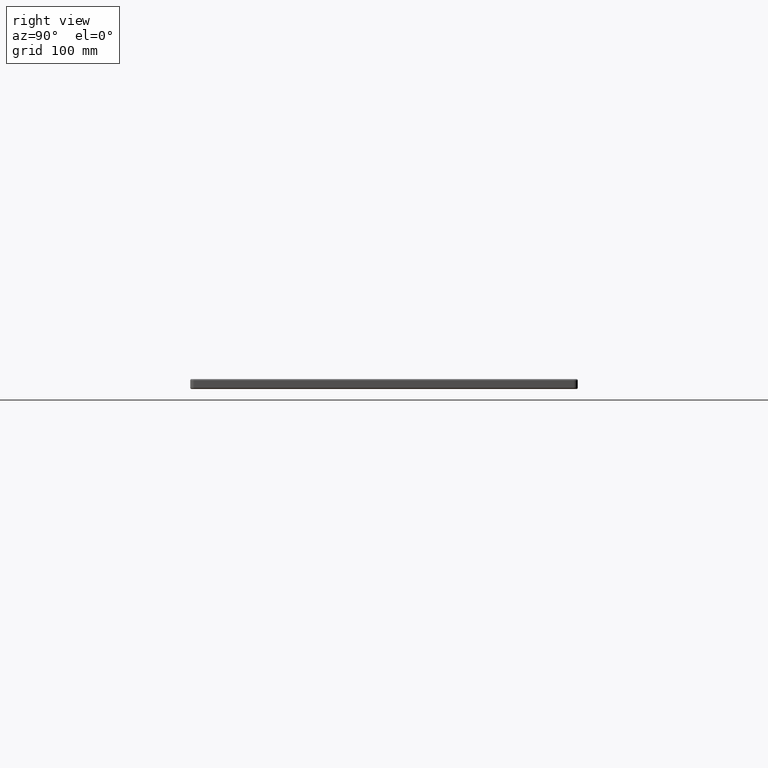
[diagram: clean part render]
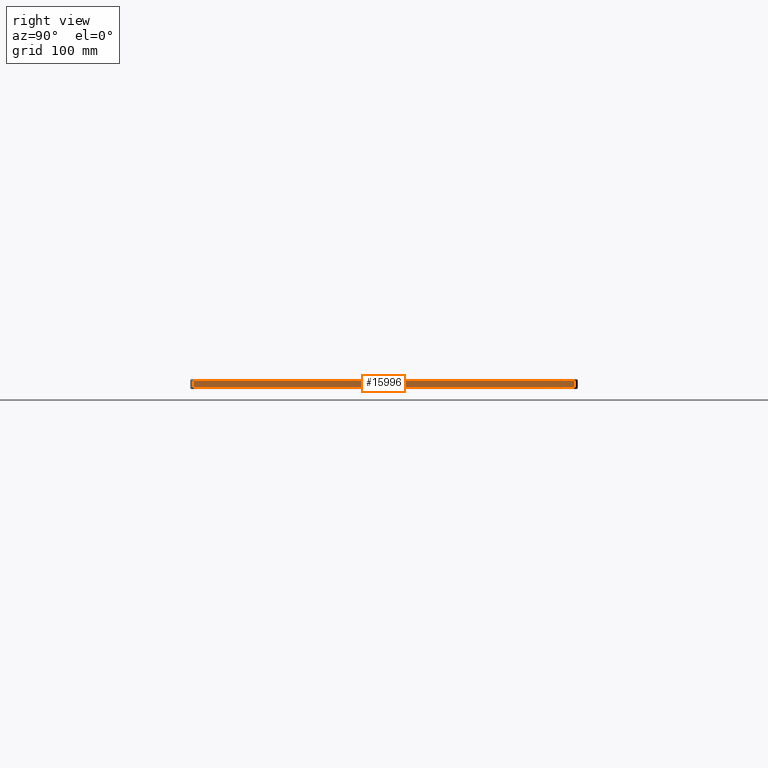
[diagram: same view with one face highlighted and labeled with its STEP entity id]
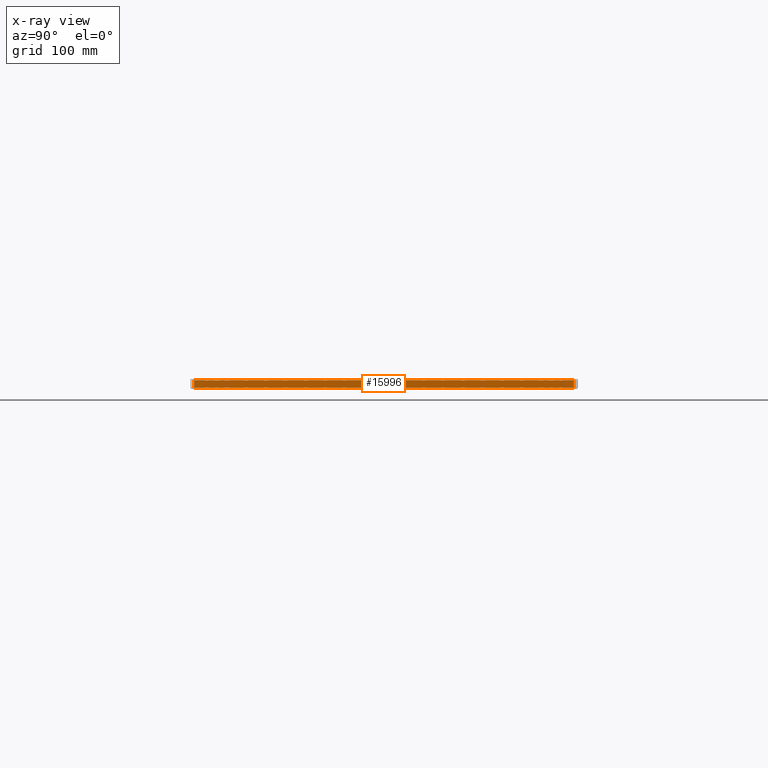
[diagram: x-ray of the same camera — body ghosted, the highlighted face saturated]
A machine part, right view. The second image highlights one B-rep face of the part: STEP entity #15996.
The next image is the same camera in x-ray: the body ghosted, the highlighted face saturated — about 0% of this face is hidden behind the body in this view.
In plain terms, the highlighted planar face has unit normal (1, 0, 0).
Its self-contained STEP definition (entity closure, byte-faithful):
#1704 = DIRECTION ( 'NONE',  ( 1.000000000000000000, 0.0000000000000000000, 0.0000000000000000000 ) ) ;
#2275 = VERTEX_POINT ( 'NONE', #20287 ) ;
#2374 = VECTOR ( 'NONE', #16492, 1000.000000000000000 ) ;
#3069 = CARTESIAN_POINT ( 'NONE',  ( 800.0000000000000000, 4.999999999999999100, -13.00000000000000000 ) ) ;
#5327 = PLANE ( 'NONE',  #43525 ) ;
#8043 = EDGE_CURVE ( 'NONE', #9361, #2275, #37223, .T. ) ;
#8506 = EDGE_CURVE ( 'NONE', #34580, #37722, #42691, .T. ) ;
#9361 = VERTEX_POINT ( 'NONE', #43325 ) ;
#11244 = EDGE_CURVE ( 'NONE', #2275, #34580, #24966, .T. ) ;
#12105 = DIRECTION ( 'NONE',  ( -0.0000000000000000000, 1.000000000000000000, 0.0000000000000000000 ) ) ;
#13551 = ORIENTED_EDGE ( 'NONE', *, *, #8043, .T. ) ;
#14190 = CARTESIAN_POINT ( 'NONE',  ( 800.0000000000000000, 5.000000000000004400, -2.000000000000000000 ) ) ;
#15996 = ADVANCED_FACE ( 'NONE', ( #30394 ), #5327, .T. ) ;
#16492 = DIRECTION ( 'NONE',  ( 0.0000000000000000000, 0.0000000000000000000, 1.000000000000000000 ) ) ;
#16566 = ORIENTED_EDGE ( 'NONE', *, *, #32148, .T. ) ;
#19891 = CARTESIAN_POINT ( 'NONE',  ( 800.0000000000000000, 4.999999999999999100, -2.000000000000000000 ) ) ;
#20051 = ORIENTED_EDGE ( 'NONE', *, *, #11244, .T. ) ;
#20287 = CARTESIAN_POINT ( 'NONE',  ( 800.0000000000000000, 495.0000000000000000, -2.000000000000000000 ) ) ;
#21664 = EDGE_LOOP ( 'NONE', ( #23778, #16566, #13551, #20051 ) ) ;
#23778 = ORIENTED_EDGE ( 'NONE', *, *, #8506, .T. ) ;
#24966 = LINE ( 'NONE', #14190, #38055 ) ;
#25711 = VECTOR ( 'NONE', #12105, 1000.000000000000000 ) ;
#25800 = CARTESIAN_POINT ( 'NONE',  ( 800.0000000000000000, 0.0000000000000000000, -11.00000000000000000 ) ) ;
#30394 = FACE_OUTER_BOUND ( 'NONE', #21664, .T. ) ;
#32148 = EDGE_CURVE ( 'NONE', #37722, #9361, #43209, .T. ) ;
#33352 = VECTOR ( 'NONE', #33644, 1000.000000000000000 ) ;
#33644 = DIRECTION ( 'NONE',  ( 0.0000000000000000000, -0.0000000000000000000, -1.000000000000000000 ) ) ;
#33832 = CARTESIAN_POINT ( 'NONE',  ( 800.0000000000000000, 495.0000000000000000, -13.00000000000000000 ) ) ;
#34580 = VERTEX_POINT ( 'NONE', #19891 ) ;
#36703 = DIRECTION ( 'NONE',  ( 0.0000000000000000000, 0.0000000000000000000, -1.000000000000000000 ) ) ;
#37223 = LINE ( 'NONE', #33832, #2374 ) ;
#37722 = VERTEX_POINT ( 'NONE', #39925 ) ;
#38055 = VECTOR ( 'NONE', #41653, 1000.000000000000000 ) ;
#39922 = CARTESIAN_POINT ( 'NONE',  ( 800.0000000000000000, 0.0000000000000000000, -13.00000000000000000 ) ) ;
#39925 = CARTESIAN_POINT ( 'NONE',  ( 800.0000000000000000, 4.999999999999999100, -11.00000000000000000 ) ) ;
#41653 = DIRECTION ( 'NONE',  ( -0.0000000000000000000, -1.000000000000000000, 0.0000000000000000000 ) ) ;
#42691 = LINE ( 'NONE', #3069, #33352 ) ;
#43209 = LINE ( 'NONE', #25800, #25711 ) ;
#43325 = CARTESIAN_POINT ( 'NONE',  ( 800.0000000000000000, 495.0000000000000000, -11.00000000000000000 ) ) ;
#43525 = AXIS2_PLACEMENT_3D ( 'NONE', #39922, #1704, #36703 ) ;